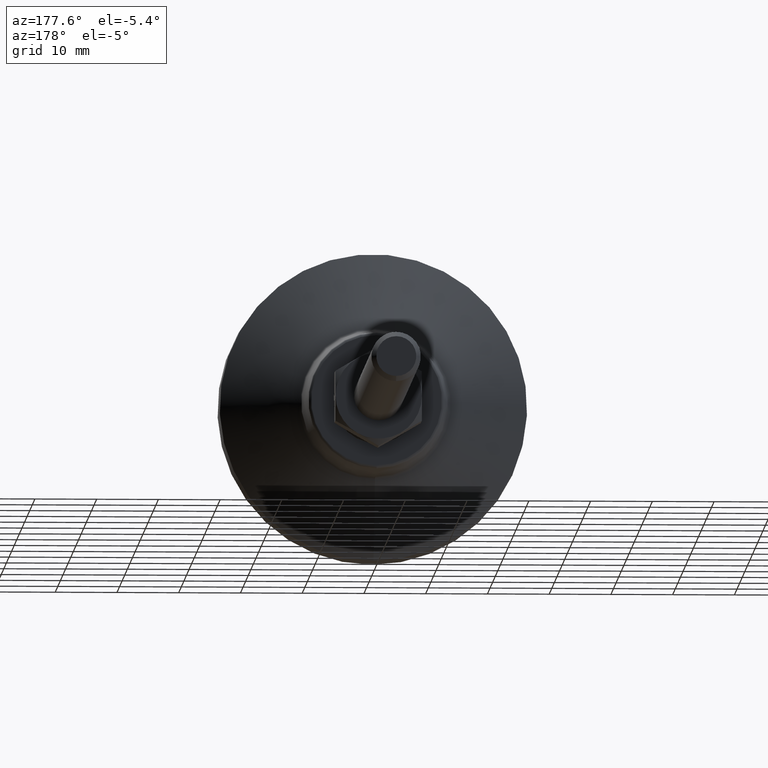
[diagram: clean part render]
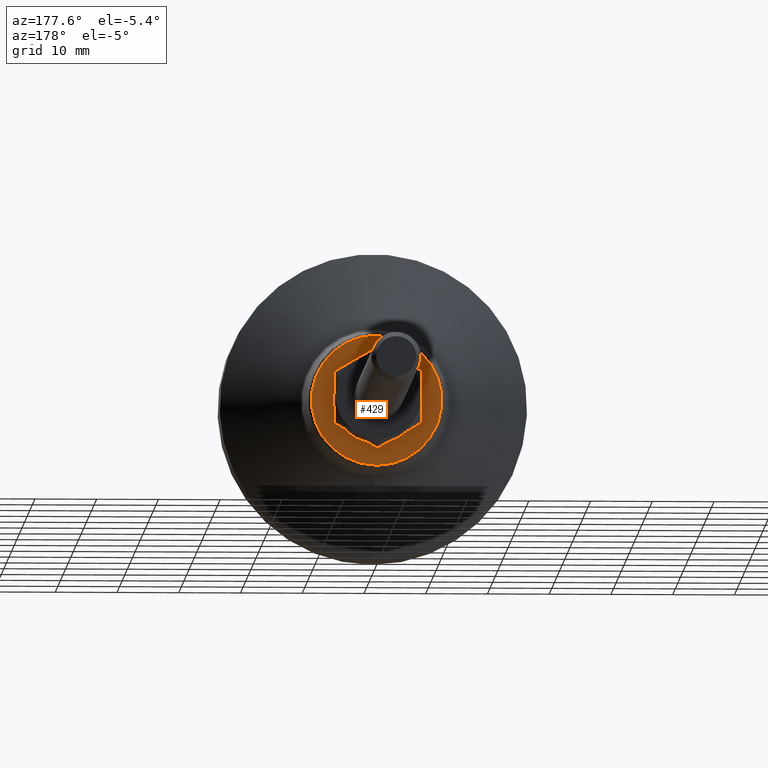
[diagram: same view with one face highlighted and labeled with its STEP entity id]
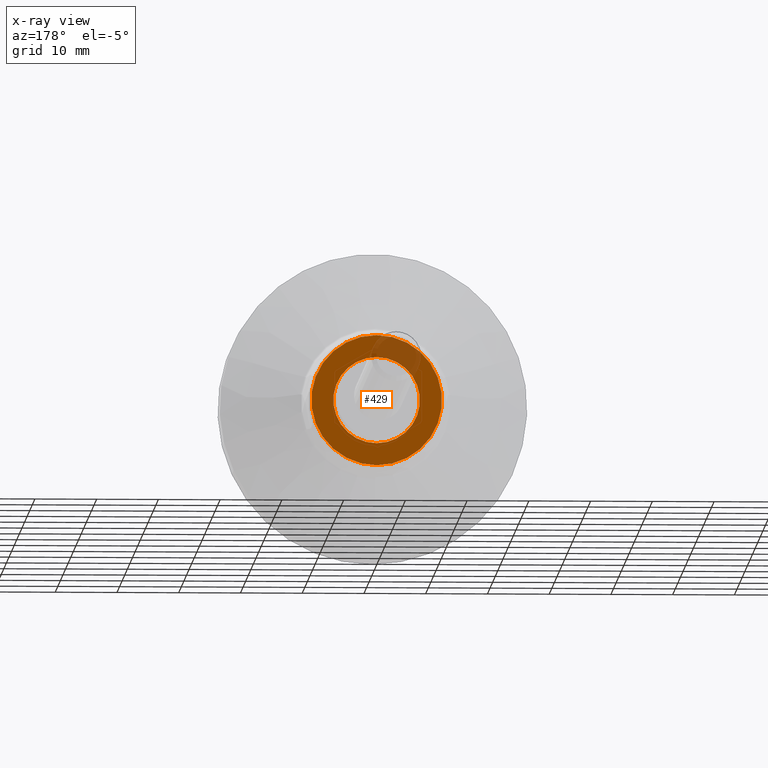
[diagram: x-ray of the same camera — body ghosted, the highlighted face saturated]
A machine part, auxiliary view. The second image highlights one B-rep face of the part: STEP entity #429.
The next image is the same camera in x-ray: the body ghosted, the highlighted face saturated — about 15% of this face is hidden behind the body in this view.
In plain terms, the highlighted planar face has unit normal (0, -1, 0).
Its self-contained STEP definition (entity closure, byte-faithful):
#90=FACE_BOUND('',#139,.T.);
#103=FACE_OUTER_BOUND('',#138,.T.);
#138=EDGE_LOOP('',(#306));
#139=EDGE_LOOP('',(#307));
#186=CIRCLE('',#468,10.5729596572683);
#187=CIRCLE('',#469,7.);
#212=VERTEX_POINT('',#672);
#213=VERTEX_POINT('',#674);
#250=EDGE_CURVE('',#212,#212,#186,.T.);
#251=EDGE_CURVE('',#213,#213,#187,.F.);
#306=ORIENTED_EDGE('',*,*,#250,.F.);
#307=ORIENTED_EDGE('',*,*,#251,.F.);
#418=PLANE('',#467);
#429=ADVANCED_FACE('',(#103,#90),#418,.F.);
#467=AXIS2_PLACEMENT_3D('',#671,#534,#535);
#468=AXIS2_PLACEMENT_3D('',#673,#536,#537);
#469=AXIS2_PLACEMENT_3D('',#675,#538,#539);
#534=DIRECTION('center_axis',(0.,-1.,0.));
#535=DIRECTION('ref_axis',(0.,0.,-1.));
#536=DIRECTION('center_axis',(0.,-1.,0.));
#537=DIRECTION('ref_axis',(0.,0.,-1.));
#538=DIRECTION('center_axis',(0.,-1.,0.));
#539=DIRECTION('ref_axis',(0.,0.,-1.));
#671=CARTESIAN_POINT('Origin',(0.,19.,0.));
#672=CARTESIAN_POINT('',(0.,19.,-10.5729596572683));
#673=CARTESIAN_POINT('Origin',(0.,19.,0.));
#674=CARTESIAN_POINT('',(0.,19.,-7.));
#675=CARTESIAN_POINT('Origin',(0.,19.,0.));